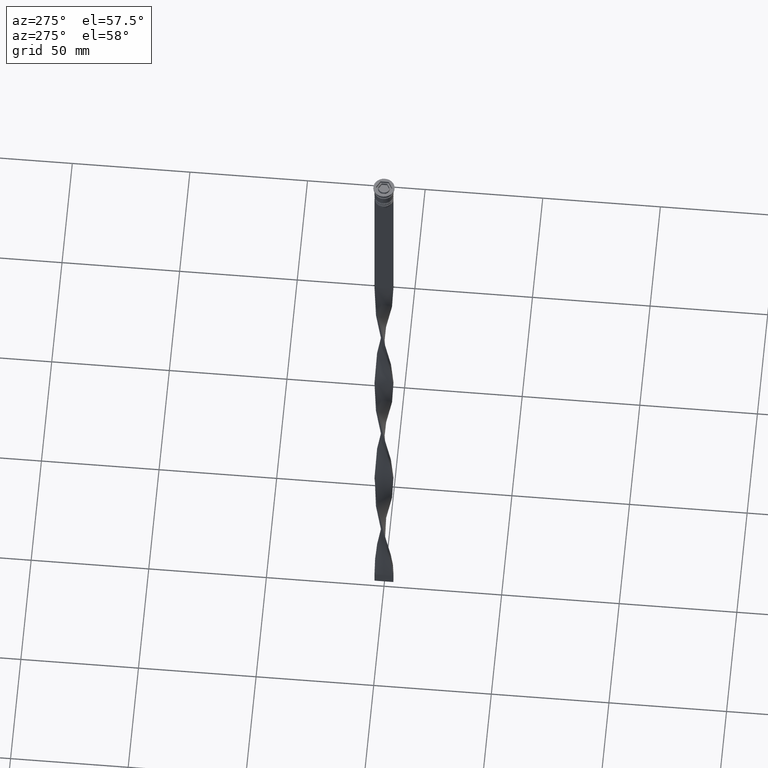
[diagram: clean part render]
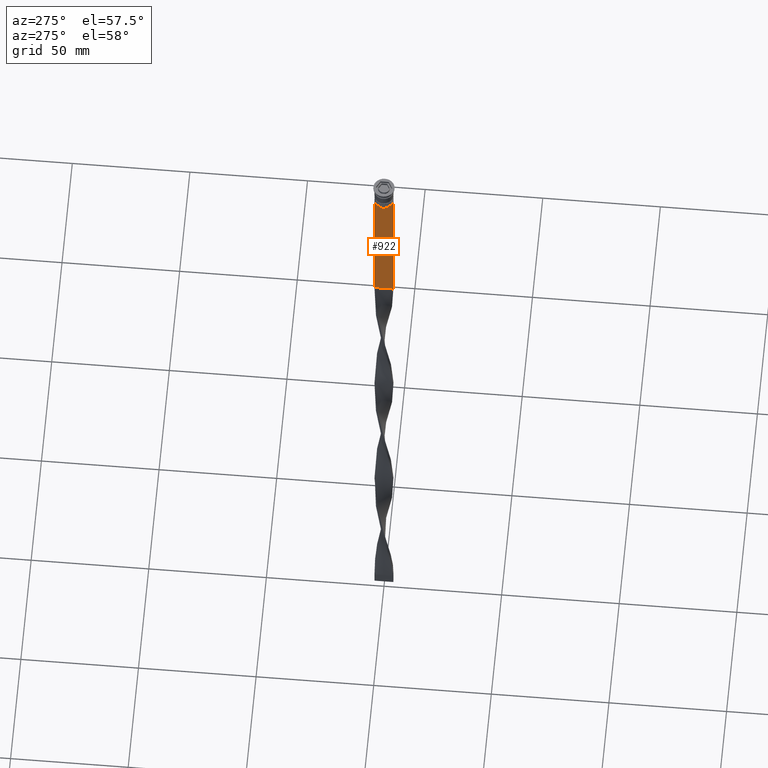
[diagram: same view with one face highlighted and labeled with its STEP entity id]
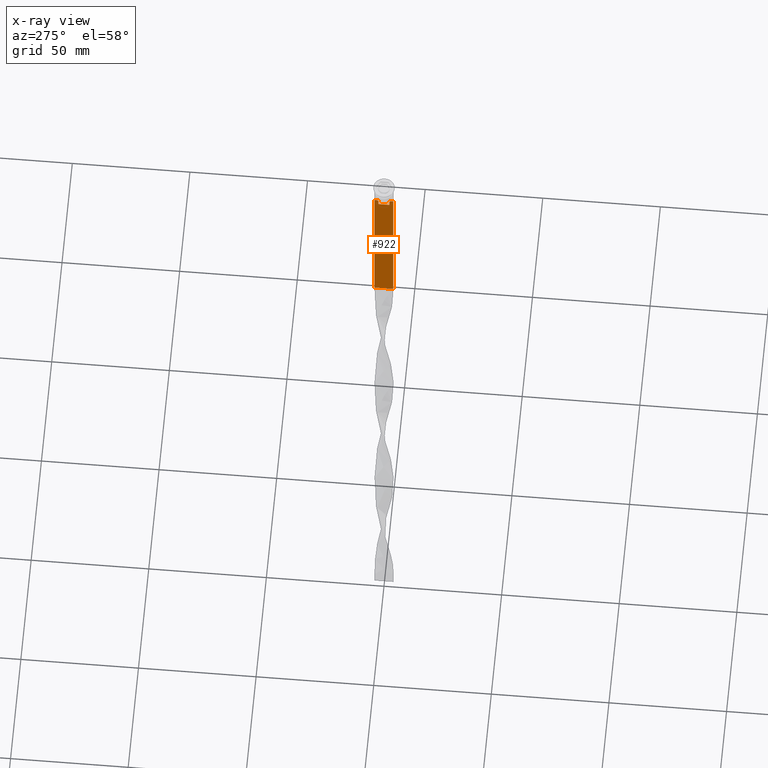
[diagram: x-ray of the same camera — body ghosted, the highlighted face saturated]
A machine part, auxiliary view. The second image highlights one B-rep face of the part: STEP entity #922.
The next image is the same camera in x-ray: the body ghosted, the highlighted face saturated — about 0% of this face is hidden behind the body in this view.
In plain terms, the highlighted planar face has unit normal (-1, 0, 0).
Its self-contained STEP definition (entity closure, byte-faithful):
#71 = EDGE_CURVE ( 'NONE', #3599, #139, #1050, .T. ) ;
#139 = VERTEX_POINT ( 'NONE', #3193 ) ;
#143 = CARTESIAN_POINT ( 'NONE',  ( -0.5000000000000000000, 2.687094542495897631, -9.666938847453439010 ) ) ;
#243 = EDGE_CURVE ( 'NONE', #3018, #3630, #3612, .T. ) ;
#277 = CARTESIAN_POINT ( 'NONE',  ( -0.5000000000000000000, -4.000000000000000000, -1.437742251701450202 ) ) ;
#332 = CARTESIAN_POINT ( 'NONE',  ( -0.5000000000000000000, 2.347338918861097135, -10.00000000000000000 ) ) ;
#350 = CARTESIAN_POINT ( 'NONE',  ( -0.5000000000000000000, 4.000000000000000000, -1.437742251701450202 ) ) ;
#498 = ORIENTED_EDGE ( 'NONE', *, *, #3552, .F. ) ;
#593 = VERTEX_POINT ( 'NONE', #2695 ) ;
#641 = EDGE_CURVE ( 'NONE', #1567, #3480, #1175, .T. ) ;
#642 = VECTOR ( 'NONE', #2405, 1000.000000000000000 ) ;
#649 = LINE ( 'NONE', #1403, #2165 ) ;
#766 = CARTESIAN_POINT ( 'NONE',  ( -0.5000000000000000000, 4.000000000000000000, -9.500000000000000000 ) ) ;
#880 = ORIENTED_EDGE ( 'NONE', *, *, #243, .F. ) ;
#907 = DIRECTION ( 'NONE',  ( 0.000000000000000000, 0.000000000000000000, 1.000000000000000000 ) ) ;
#922 = ADVANCED_FACE ( 'NONE', ( #948 ), #1893, .T. ) ;
#932 = CARTESIAN_POINT ( 'NONE',  ( -0.5000000000000000000, -2.347338918861097135, -10.00000000000000000 ) ) ;
#948 = FACE_OUTER_BOUND ( 'NONE', #2394, .T. ) ;
#983 = ORIENTED_EDGE ( 'NONE', *, *, #71, .F. ) ;
#1002 = EDGE_CURVE ( 'NONE', #3630, #1567, #2359, .T. ) ;
#1038 = CARTESIAN_POINT ( 'NONE',  ( -0.5000000000000000000, 2.347338918861097135, -12.50000000000000000 ) ) ;
#1050 = LINE ( 'NONE', #3567, #1883 ) ;
#1097 = VECTOR ( 'NONE', #2424, 1000.000000000000000 ) ;
#1106 = VECTOR ( 'NONE', #3796, 1000.000000000000000 ) ;
#1107 = CARTESIAN_POINT ( 'NONE',  ( -0.5000000000000000000, 2.856571371417138572, -9.500000000000000000 ) ) ;
#1175 = LINE ( 'NONE', #2114, #1097 ) ;
#1215 = DIRECTION ( 'NONE',  ( -1.000000000000000000, 0.000000000000000000, 0.000000000000000000 ) ) ;
#1386 = LINE ( 'NONE', #2345, #1635 ) ;
#1403 = CARTESIAN_POINT ( 'NONE',  ( -0.5000000000000000000, -4.000000000000000000, -9.500000000000000000 ) ) ;
#1540 = VERTEX_POINT ( 'NONE', #766 ) ;
#1567 = VERTEX_POINT ( 'NONE', #1038 ) ;
#1597 = ORIENTED_EDGE ( 'NONE', *, *, #1652, .F. ) ;
#1602 = DIRECTION ( 'NONE',  ( 0.000000000000000000, -1.000000000000000000, 0.000000000000000000 ) ) ;
#1635 = VECTOR ( 'NONE', #3619, 1000.000000000000000 ) ;
#1649 = DIRECTION ( 'NONE',  ( 0.000000000000000000, -1.000000000000000000, 0.000000000000000000 ) ) ;
#1650 = ORIENTED_EDGE ( 'NONE', *, *, #4078, .F. ) ;
#1652 = EDGE_CURVE ( 'NONE', #1540, #2580, #1386, .T. ) ;
#1685 = CARTESIAN_POINT ( 'NONE',  ( -0.5000000000000000000, 2.347338918861097135, -10.00000000000000000 ) ) ;
#1688 = CARTESIAN_POINT ( 'NONE',  ( -0.5000000000000000000, -4.000000000000000000, -1.437742251701450202 ) ) ;
#1752 = EDGE_CURVE ( 'NONE', #2580, #3018, #2635, .T. ) ;
#1787 = VERTEX_POINT ( 'NONE', #2118 ) ;
#1883 = VECTOR ( 'NONE', #1649, 1000.000000000000000 ) ;
#1893 = PLANE ( 'NONE',  #2080 ) ;
#1932 = ORIENTED_EDGE ( 'NONE', *, *, #1002, .F. ) ;
#1936 = CARTESIAN_POINT ( 'NONE',  ( -0.5000000000000000000, -2.687095498514037839, -9.666937905752043037 ) ) ;
#1947 = CARTESIAN_POINT ( 'NONE',  ( -0.5000000000000000000, -4.000000000000000000, -78.50000000000000000 ) ) ;
#2080 = AXIS2_PLACEMENT_3D ( 'NONE', #277, #1215, #907 ) ;
#2114 = CARTESIAN_POINT ( 'NONE',  ( -0.5000000000000000000, 2.399999999999996803, -12.50000000000000000 ) ) ;
#2118 = CARTESIAN_POINT ( 'NONE',  ( -0.5000000000000000000, -2.856571371417138572, -9.500000000000000000 ) ) ;
#2165 = VECTOR ( 'NONE', #1602, 1000.000000000000000 ) ;
#2168 = CARTESIAN_POINT ( 'NONE',  ( -0.5000000000000000000, 2.856571371417138572, -9.500000000000000000 ) ) ;
#2272 = ORIENTED_EDGE ( 'NONE', *, *, #4049, .F. ) ;
#2309 = CARTESIAN_POINT ( 'NONE',  ( -0.5000000000000000000, -2.347338918861097135, -10.00000000000000000 ) ) ;
#2345 = CARTESIAN_POINT ( 'NONE',  ( -0.5000000000000000000, -4.000000000000000000, -9.500000000000000000 ) ) ;
#2359 = LINE ( 'NONE', #3633, #3074 ) ;
#2394 = EDGE_LOOP ( 'NONE', ( #880, #3820, #1597, #3738, #3088, #1650, #983, #498, #2272, #3795, #4040, #1932 ) ) ;
#2405 = DIRECTION ( 'NONE',  ( 0.000000000000000000, -1.000000000000000000, 0.000000000000000000 ) ) ;
#2424 = DIRECTION ( 'NONE',  ( 0.000000000000000000, -1.000000000000000000, 0.000000000000000000 ) ) ;
#2481 = CARTESIAN_POINT ( 'NONE',  ( -0.5000000000000000000, -2.347338918861097135, -12.50000000000000000 ) ) ;
#2508 = EDGE_CURVE ( 'NONE', #3480, #2802, #2841, .T. ) ;
#2551 = CARTESIAN_POINT ( 'NONE',  ( -0.5000000000000000000, -2.517408374291112416, -9.833662228483172285 ) ) ;
#2580 = VERTEX_POINT ( 'NONE', #3397 ) ;
#2622 = EDGE_CURVE ( 'NONE', #3376, #593, #3524, .T. ) ;
#2628 = CARTESIAN_POINT ( 'NONE',  ( -0.5000000000000000000, -2.856571371417138572, -9.500000000000000000 ) ) ;
#2635 = LINE ( 'NONE', #3705, #642 ) ;
#2659 = B_SPLINE_CURVE_WITH_KNOTS ( 'NONE', 3,
 ( #932, #2551, #1936, #2628 ),
 .UNSPECIFIED., .F., .F.,
 ( 4, 4 ),
 ( 0.01178336557230038641, 0.01249758354768160454 ),
 .UNSPECIFIED. ) ;
#2689 = CARTESIAN_POINT ( 'NONE',  ( -0.5000000000000000000, 2.517407211010871393, -9.833663366238582171 ) ) ;
#2695 = CARTESIAN_POINT ( 'NONE',  ( -0.5000000000000000000, 4.000000000000000000, -78.50000000000000000 ) ) ;
#2802 = VERTEX_POINT ( 'NONE', #2309 ) ;
#2841 = LINE ( 'NONE', #3716, #1106 ) ;
#2898 = DIRECTION ( 'NONE',  ( 0.000000000000000000, 0.000000000000000000, -1.000000000000000000 ) ) ;
#2972 = CARTESIAN_POINT ( 'NONE',  ( -0.5000000000000000000, -3.867815921162741422, -9.500000000000000000 ) ) ;
#3018 = VERTEX_POINT ( 'NONE', #2168 ) ;
#3074 = VECTOR ( 'NONE', #3696, 1000.000000000000000 ) ;
#3088 = ORIENTED_EDGE ( 'NONE', *, *, #2622, .F. ) ;
#3132 = CARTESIAN_POINT ( 'NONE',  ( -0.5000000000000000000, -4.000000000000000000, -78.50000000000000000 ) ) ;
#3188 = DIRECTION ( 'NONE',  ( 0.000000000000000000, 0.000000000000000000, -1.000000000000000000 ) ) ;
#3193 = CARTESIAN_POINT ( 'NONE',  ( -0.5000000000000000000, -4.000000000000000000, -9.500000000000000000 ) ) ;
#3353 = VECTOR ( 'NONE', #3188, 1000.000000000000000 ) ;
#3376 = VERTEX_POINT ( 'NONE', #3132 ) ;
#3397 = CARTESIAN_POINT ( 'NONE',  ( -0.5000000000000000000, 3.867815921162741422, -9.500000000000000000 ) ) ;
#3480 = VERTEX_POINT ( 'NONE', #2481 ) ;
#3524 = LINE ( 'NONE', #1947, #4079 ) ;
#3549 = LINE ( 'NONE', #1688, #3623 ) ;
#3552 = EDGE_CURVE ( 'NONE', #1787, #3599, #649, .T. ) ;
#3567 = CARTESIAN_POINT ( 'NONE',  ( -0.5000000000000000000, -4.000000000000000000, -9.500000000000000000 ) ) ;
#3599 = VERTEX_POINT ( 'NONE', #2972 ) ;
#3612 = B_SPLINE_CURVE_WITH_KNOTS ( 'NONE', 3,
 ( #1107, #143, #2689, #1685 ),
 .UNSPECIFIED., .F., .F.,
 ( 4, 4 ),
 ( 0.004956812174141195064, 0.005670477137898153989 ),
 .UNSPECIFIED. ) ;
#3619 = DIRECTION ( 'NONE',  ( 0.000000000000000000, -1.000000000000000000, 0.000000000000000000 ) ) ;
#3623 = VECTOR ( 'NONE', #2898, 1000.000000000000000 ) ;
#3630 = VERTEX_POINT ( 'NONE', #332 ) ;
#3633 = CARTESIAN_POINT ( 'NONE',  ( -0.5000000000000000000, 2.347338918861097135, 0.000000000000000000 ) ) ;
#3668 = EDGE_CURVE ( 'NONE', #1540, #593, #3794, .T. ) ;
#3696 = DIRECTION ( 'NONE',  ( 0.000000000000000000, 0.000000000000000000, -1.000000000000000000 ) ) ;
#3705 = CARTESIAN_POINT ( 'NONE',  ( -0.5000000000000000000, -4.000000000000000000, -9.500000000000000000 ) ) ;
#3716 = CARTESIAN_POINT ( 'NONE',  ( -0.5000000000000000000, -2.347338918861097135, 0.000000000000000000 ) ) ;
#3738 = ORIENTED_EDGE ( 'NONE', *, *, #3668, .T. ) ;
#3794 = LINE ( 'NONE', #350, #3353 ) ;
#3795 = ORIENTED_EDGE ( 'NONE', *, *, #2508, .F. ) ;
#3796 = DIRECTION ( 'NONE',  ( -0.000000000000000000, -0.000000000000000000, 1.000000000000000000 ) ) ;
#3820 = ORIENTED_EDGE ( 'NONE', *, *, #1752, .F. ) ;
#3876 = DIRECTION ( 'NONE',  ( 0.000000000000000000, 1.000000000000000000, 0.000000000000000000 ) ) ;
#4040 = ORIENTED_EDGE ( 'NONE', *, *, #641, .F. ) ;
#4049 = EDGE_CURVE ( 'NONE', #2802, #1787, #2659, .T. ) ;
#4078 = EDGE_CURVE ( 'NONE', #139, #3376, #3549, .T. ) ;
#4079 = VECTOR ( 'NONE', #3876, 1000.000000000000000 ) ;